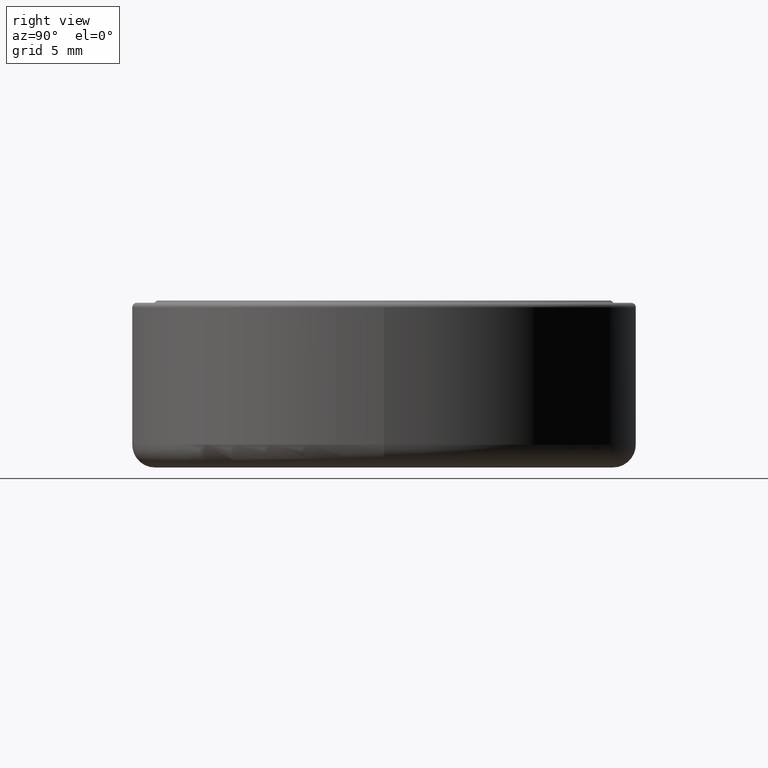
[diagram: clean part render]
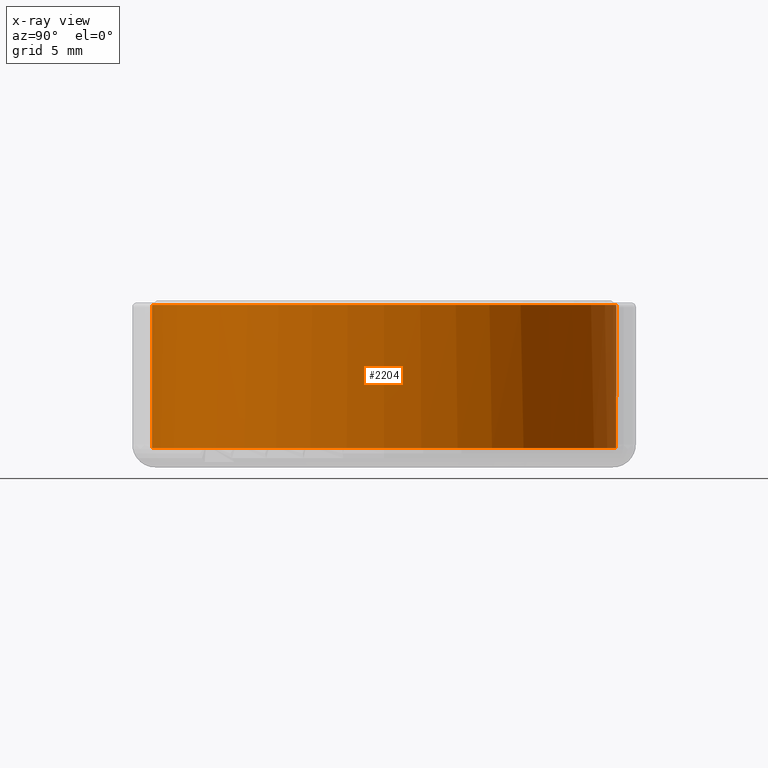
[diagram: x-ray — body ghosted, one internal face saturated and labeled with its STEP entity id]
A machine part, right view, then the same camera in x-ray: the body is ghosted and one INTERNAL B-rep face — a face not visible from any outside direction — is saturated and labeled: STEP entity #2204.
In plain terms, the highlighted cylindrical surface (bore or boss wall) has radius 10.15 mm, axis along (-0, -0, 1).
Its self-contained STEP definition (entity closure, byte-faithful):
#214 = DIRECTION ( 'NONE',  ( -0.0000000000000000000, -0.0000000000000000000, 1.000000000000000000 ) ) ;
#288 = AXIS2_PLACEMENT_3D ( 'NONE', #888, #214, #6999 ) ;
#888 = CARTESIAN_POINT ( 'NONE',  ( 0.0000000000000000000, 0.0000000000000000000, 0.0000000000000000000 ) ) ;
#987 = AXIS2_PLACEMENT_3D ( 'NONE', #5108, #8921, #9647 ) ;
#1022 = FACE_OUTER_BOUND ( 'NONE', #3570, .T. ) ;
#1124 = CIRCLE ( 'NONE', #8723, 10.14999999999999900 ) ;
#1495 = CARTESIAN_POINT ( 'NONE',  ( 0.0000000000000000000, 0.0000000000000000000, 3.450000000000012200 ) ) ;
#2204 = ADVANCED_FACE ( 'NONE', ( #1022, #4501 ), #4841, .T. ) ;
#2480 = CARTESIAN_POINT ( 'NONE',  ( 10.14999999999999900, 0.0000000000000000000, -2.799999999999999800 ) ) ;
#2658 = VERTEX_POINT ( 'NONE', #2480 ) ;
#3030 = DIRECTION ( 'NONE',  ( 0.0000000000000000000, 0.0000000000000000000, -1.000000000000000000 ) ) ;
#3405 = ORIENTED_EDGE ( 'NONE', *, *, #9745, .T. ) ;
#3570 = EDGE_LOOP ( 'NONE', ( #3405 ) ) ;
#4501 = FACE_OUTER_BOUND ( 'NONE', #6205, .T. ) ;
#4841 = CYLINDRICAL_SURFACE ( 'NONE', #288, 10.14999999999999900 ) ;
#5108 = CARTESIAN_POINT ( 'NONE',  ( 0.0000000000000000000, 0.0000000000000000000, -2.799999999999999800 ) ) ;
#5567 = CARTESIAN_POINT ( 'NONE',  ( -10.14999999999999900, 0.0000000000000000000, 3.450000000000012200 ) ) ;
#6071 = DIRECTION ( 'NONE',  ( -1.000000000000000000, 0.0000000000000000000, 0.0000000000000000000 ) ) ;
#6149 = ORIENTED_EDGE ( 'NONE', *, *, #9076, .T. ) ;
#6205 = EDGE_LOOP ( 'NONE', ( #6149 ) ) ;
#6367 = VERTEX_POINT ( 'NONE', #5567 ) ;
#6999 = DIRECTION ( 'NONE',  ( 1.000000000000000000, 0.0000000000000000000, 0.0000000000000000000 ) ) ;
#8723 = AXIS2_PLACEMENT_3D ( 'NONE', #1495, #3030, #6071 ) ;
#8921 = DIRECTION ( 'NONE',  ( -0.0000000000000000000, -0.0000000000000000000, 1.000000000000000000 ) ) ;
#9076 = EDGE_CURVE ( 'NONE', #2658, #2658, #9440, .T. ) ;
#9440 = CIRCLE ( 'NONE', #987, 10.14999999999999900 ) ;
#9647 = DIRECTION ( 'NONE',  ( 1.000000000000000000, 0.0000000000000000000, 0.0000000000000000000 ) ) ;
#9745 = EDGE_CURVE ( 'NONE', #6367, #6367, #1124, .T. ) ;